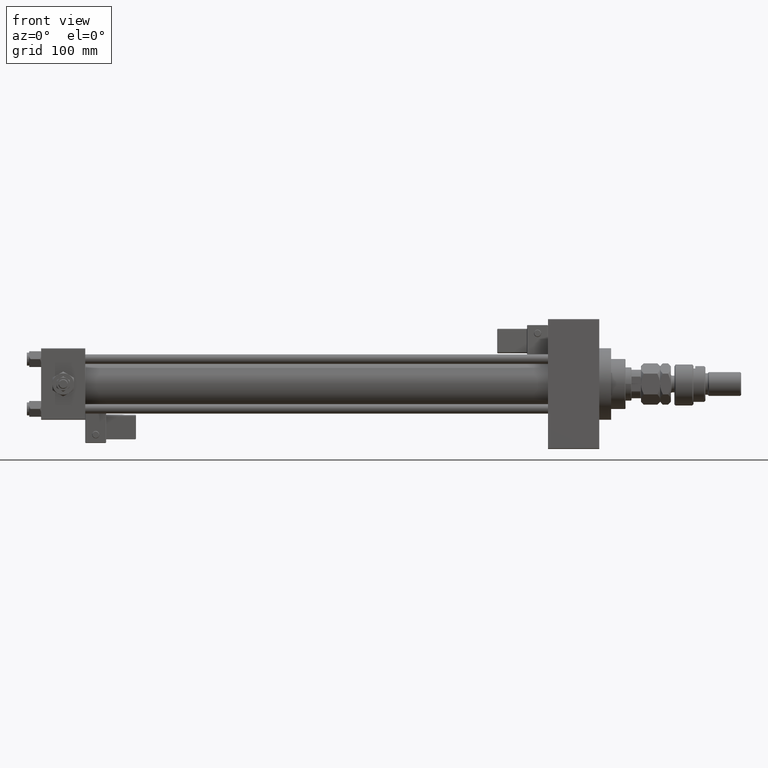
[diagram: clean part render]
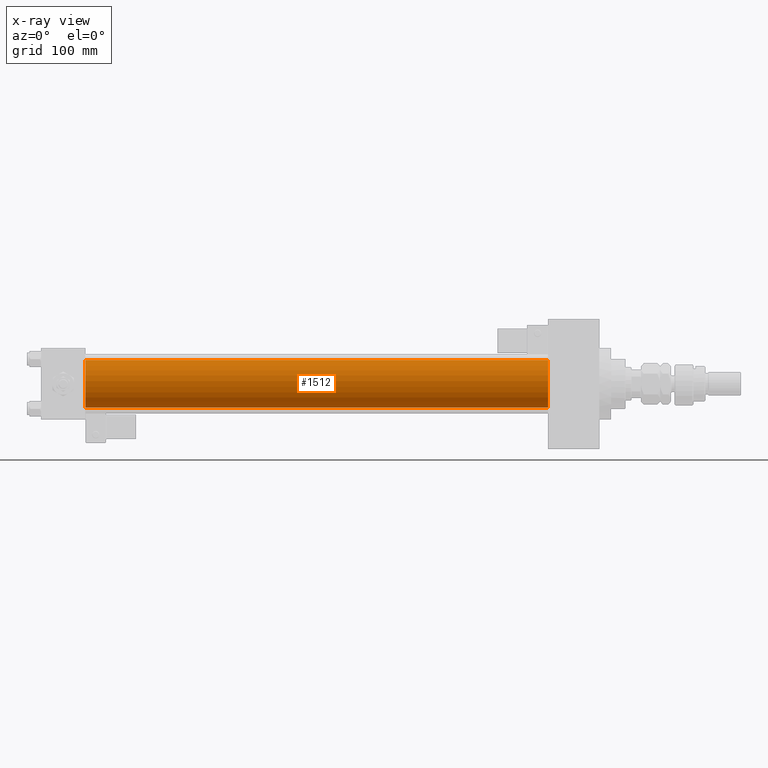
[diagram: x-ray — body ghosted, one internal face saturated and labeled with its STEP entity id]
A machine part, front view, then the same camera in x-ray: the body is ghosted and one INTERNAL B-rep face — a face not visible from any outside direction — is saturated and labeled: STEP entity #1512.
In plain terms, the highlighted cylindrical surface (edge-blend (fillet) strip) has radius 20 mm, axis along (-1, -0, -0).
Its self-contained STEP definition (entity closure, byte-faithful):
#87 = DIRECTION ( 'NONE',  ( 0.000000000000000000, 0.000000000000000000, -1.000000000000000000 ) ) ;
#1512 = ADVANCED_FACE ( 'NONE', ( #29577 ), #51183, .F. ) ;
#5174 = ORIENTED_EDGE ( 'NONE', *, *, #9593, .T. ) ;
#5257 = CIRCLE ( 'NONE', #47169, 20.00000000000000000 ) ;
#5489 = VERTEX_POINT ( 'NONE', #30770 ) ;
#6676 = ORIENTED_EDGE ( 'NONE', *, *, #22046, .T. ) ;
#7233 = VERTEX_POINT ( 'NONE', #37097 ) ;
#9593 = EDGE_CURVE ( 'NONE', #5489, #7233, #52674, .T. ) ;
#9892 = CARTESIAN_POINT ( 'NONE',  ( 37.00000000000000000, -2.602085213965210642E-15, 20.00000000000000000 ) ) ;
#10073 = CARTESIAN_POINT ( 'NONE',  ( 425.0000000000000000, -2.602085213965210642E-15, 20.00000000000000000 ) ) ;
#10352 = VECTOR ( 'NONE', #28051, 1000.000000000000000 ) ;
#11365 = CARTESIAN_POINT ( 'NONE',  ( 425.0000000000000000, -1.527916156705046464E-16, -20.00000000000000000 ) ) ;
#11427 = DIRECTION ( 'NONE',  ( 0.000000000000000000, 0.000000000000000000, -1.000000000000000000 ) ) ;
#11888 = EDGE_CURVE ( 'NONE', #40000, #7233, #5257, .T. ) ;
#15736 = VECTOR ( 'NONE', #38861, 1000.000000000000000 ) ;
#16019 = CIRCLE ( 'NONE', #33508, 20.00000000000000000 ) ;
#17013 = CARTESIAN_POINT ( 'NONE',  ( 37.00000000000000000, -2.602085213965210642E-15, 0.000000000000000000 ) ) ;
#18024 = AXIS2_PLACEMENT_3D ( 'NONE', #33955, #50642, #33422 ) ;
#22046 = EDGE_CURVE ( 'NONE', #52633, #5489, #16019, .T. ) ;
#25320 = EDGE_CURVE ( 'NONE', #52633, #40000, #51447, .T. ) ;
#25491 = DIRECTION ( 'NONE',  ( 1.000000000000000000, 0.000000000000000000, 0.000000000000000000 ) ) ;
#28051 = DIRECTION ( 'NONE',  ( -1.000000000000000000, -0.000000000000000000, -0.000000000000000000 ) ) ;
#29577 = FACE_OUTER_BOUND ( 'NONE', #39821, .T. ) ;
#30770 = CARTESIAN_POINT ( 'NONE',  ( 425.0000000000000000, -1.527916156705046464E-16, -20.00000000000000000 ) ) ;
#33422 = DIRECTION ( 'NONE',  ( 0.000000000000000000, 0.000000000000000000, 1.000000000000000000 ) ) ;
#33508 = AXIS2_PLACEMENT_3D ( 'NONE', #48913, #53265, #11427 ) ;
#33955 = CARTESIAN_POINT ( 'NONE',  ( 425.0000000000000000, -2.602085213965210642E-15, 0.000000000000000000 ) ) ;
#37097 = CARTESIAN_POINT ( 'NONE',  ( 37.00000000000000000, -1.527916156705046464E-16, -20.00000000000000000 ) ) ;
#37814 = ORIENTED_EDGE ( 'NONE', *, *, #25320, .F. ) ;
#38421 = ORIENTED_EDGE ( 'NONE', *, *, #11888, .F. ) ;
#38861 = DIRECTION ( 'NONE',  ( -1.000000000000000000, -0.000000000000000000, -0.000000000000000000 ) ) ;
#39821 = EDGE_LOOP ( 'NONE', ( #6676, #5174, #38421, #37814 ) ) ;
#40000 = VERTEX_POINT ( 'NONE', #9892 ) ;
#47169 = AXIS2_PLACEMENT_3D ( 'NONE', #17013, #25491, #87 ) ;
#48913 = CARTESIAN_POINT ( 'NONE',  ( 425.0000000000000000, -2.602085213965210642E-15, 0.000000000000000000 ) ) ;
#50642 = DIRECTION ( 'NONE',  ( -1.000000000000000000, -0.000000000000000000, -0.000000000000000000 ) ) ;
#50903 = CARTESIAN_POINT ( 'NONE',  ( 425.0000000000000000, -2.602085213965210642E-15, 20.00000000000000000 ) ) ;
#51183 = CYLINDRICAL_SURFACE ( 'NONE', #18024, 20.00000000000000000 ) ;
#51447 = LINE ( 'NONE', #50903, #15736 ) ;
#52633 = VERTEX_POINT ( 'NONE', #10073 ) ;
#52674 = LINE ( 'NONE', #11365, #10352 ) ;
#53265 = DIRECTION ( 'NONE',  ( 1.000000000000000000, 0.000000000000000000, 0.000000000000000000 ) ) ;